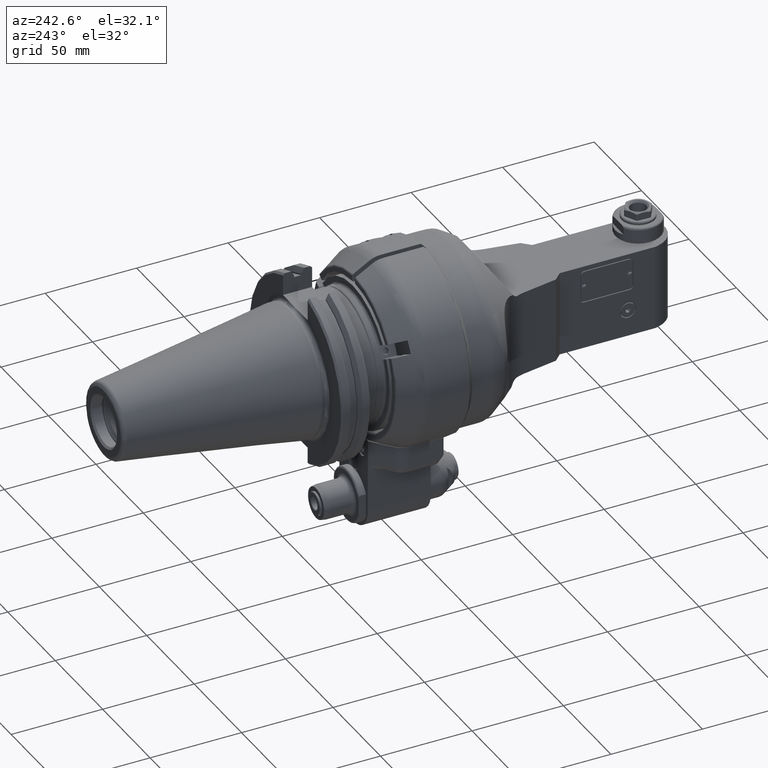
[diagram: clean part render]
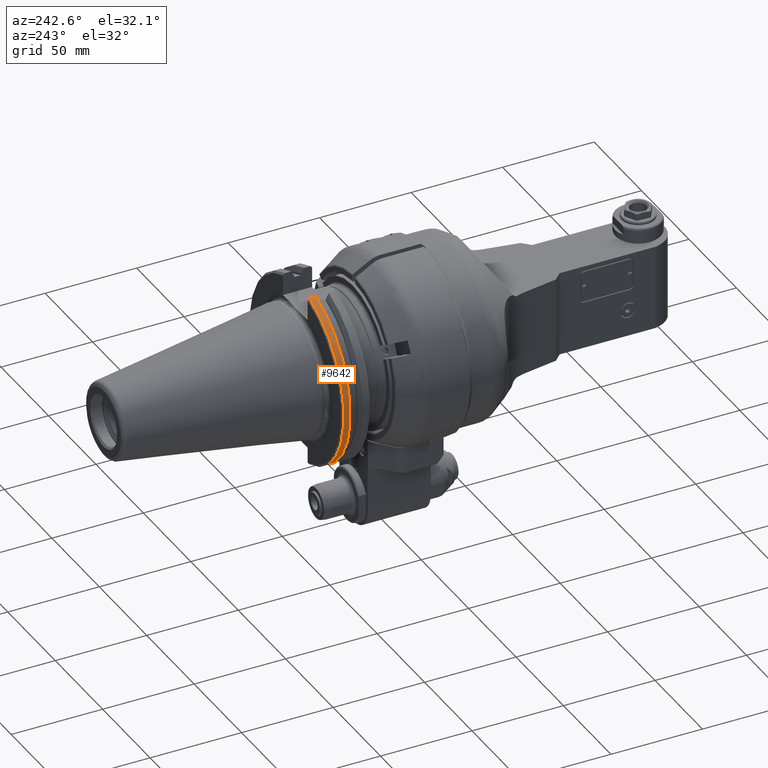
[diagram: same view with one face highlighted and labeled with its STEP entity id]
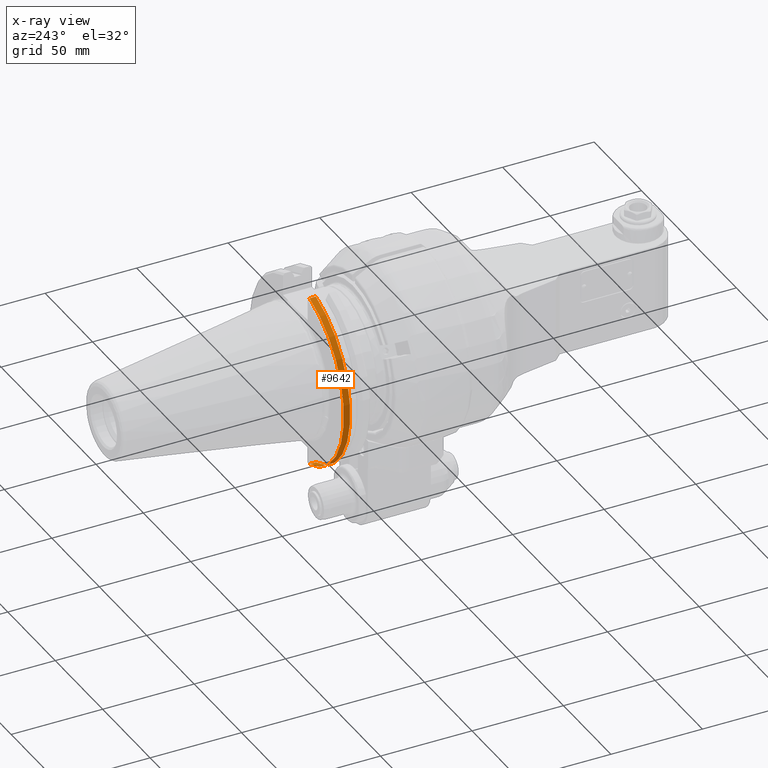
[diagram: x-ray of the same camera — body ghosted, the highlighted face saturated]
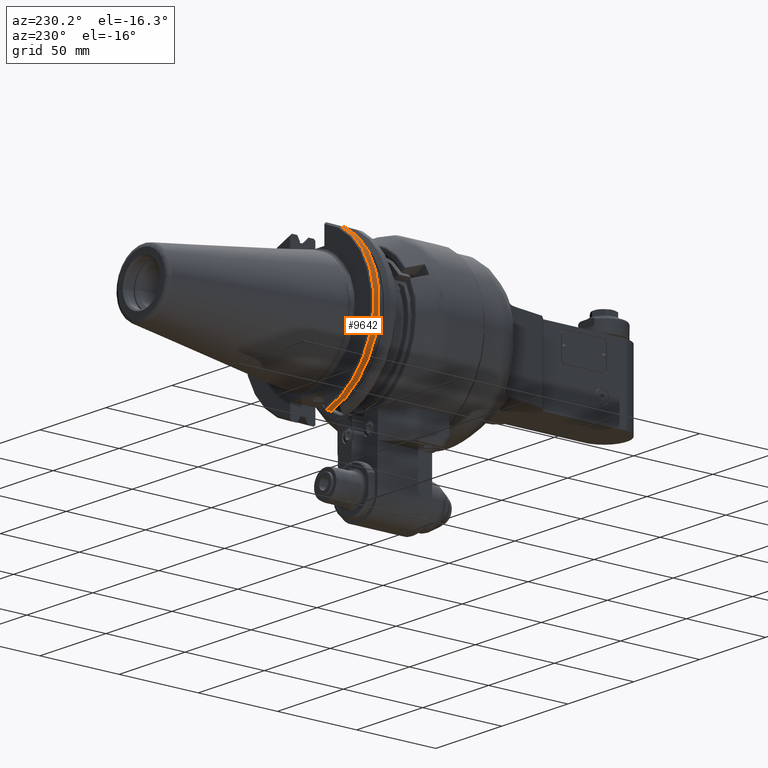
[diagram: same view with one face highlighted and labeled with its STEP entity id]
A machine part, auxiliary view. The second image highlights one B-rep face of the part: STEP entity #9642.
The next image is the same camera in x-ray: the body ghosted, the highlighted face saturated — about 0% of this face is hidden behind the body in this view.
A second angle (auxiliary view) of the same face is appended — the face is thin or edge-on in the first view.
In plain terms, the highlighted cylindrical surface (partial cylindrical patch) has radius 49.2125 mm, axis along (0, -1, 0).
Its self-contained STEP definition (entity closure, byte-faithful):
#602=CYLINDRICAL_SURFACE('',#10818,1.9375);
#1135=CIRCLE('',#10817,1.9375);
#1136=CIRCLE('',#10819,1.9375);
#1666=FACE_OUTER_BOUND('',#2329,.T.);
#2329=EDGE_LOOP('',(#8599,#8600,#8601,#8602));
#3001=LINE('',#19007,#3682);
#3009=LINE('',#19040,#3690);
#3682=VECTOR('',#13595,0.137296583894685);
#3690=VECTOR('',#13611,0.137296583894685);
#4606=VERTEX_POINT('',#19004);
#4607=VERTEX_POINT('',#19006);
#4618=VERTEX_POINT('',#19035);
#4619=VERTEX_POINT('',#19039);
#5949=EDGE_CURVE('',#4607,#4606,#3001,.T.);
#5962=EDGE_CURVE('',#4619,#4618,#3009,.T.);
#5971=EDGE_CURVE('',#4607,#4618,#1135,.T.);
#5972=EDGE_CURVE('',#4619,#4606,#1136,.T.);
#8599=ORIENTED_EDGE('',*,*,#5971,.F.);
#8600=ORIENTED_EDGE('',*,*,#5949,.T.);
#8601=ORIENTED_EDGE('',*,*,#5972,.F.);
#8602=ORIENTED_EDGE('',*,*,#5962,.T.);
#9642=ADVANCED_FACE('',(#1666),#602,.T.);
#10817=AXIS2_PLACEMENT_3D('',#19056,#13635,#13636);
#10818=AXIS2_PLACEMENT_3D('',#19057,#13637,#13638);
#10819=AXIS2_PLACEMENT_3D('',#19058,#13639,#13640);
#13595=DIRECTION('',(0.,1.,0.));
#13611=DIRECTION('',(0.,-1.,0.));
#13635=DIRECTION('center_axis',(0.,-1.,0.));
#13636=DIRECTION('ref_axis',(-0.2632258064516,0.,0.964734250878399));
#13637=DIRECTION('center_axis',(0.,-1.,0.));
#13638=DIRECTION('ref_axis',(-1.,0.,1.22464679914735E-16));
#13639=DIRECTION('center_axis',(0.,1.,0.));
#13640=DIRECTION('ref_axis',(-1.,0.,0.));
#19004=CARTESIAN_POINT('',(-0.51,2.76919291338583,1.86917261107677));
#19006=CARTESIAN_POINT('',(-0.51,2.63189632949094,1.86917261107677));
#19007=CARTESIAN_POINT('',(-0.51,2.63189632949094,1.86917261107677));
#19035=CARTESIAN_POINT('',(-0.51,2.63189632949094,-1.86917261107677));
#19039=CARTESIAN_POINT('',(-0.51,2.76919291338583,-1.86917261107677));
#19040=CARTESIAN_POINT('',(-0.51,2.76919291338583,-1.86917261107677));
#19056=CARTESIAN_POINT('Origin',(0.,2.63189632949094,0.));
#19057=CARTESIAN_POINT('Origin',(0.,2.28455298203071,0.));
#19058=CARTESIAN_POINT('Origin',(0.,2.76919291338583,0.));